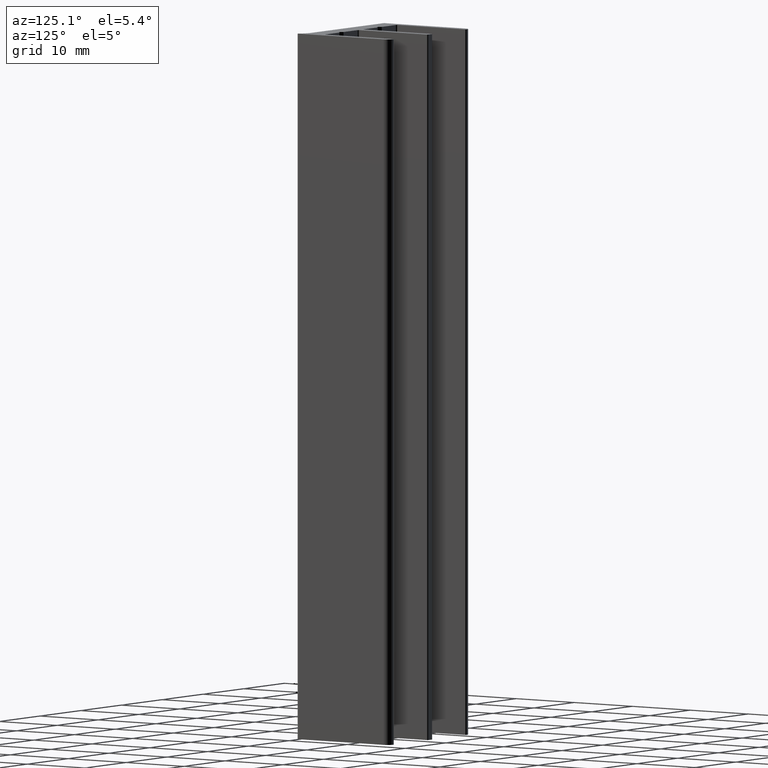
[diagram: clean part render]
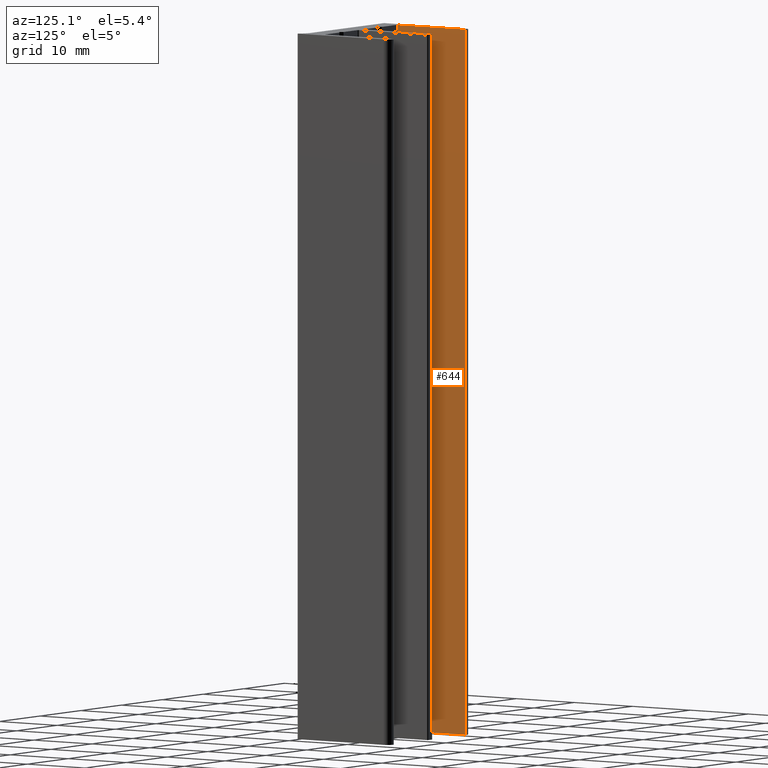
[diagram: same view with one face highlighted and labeled with its STEP entity id]
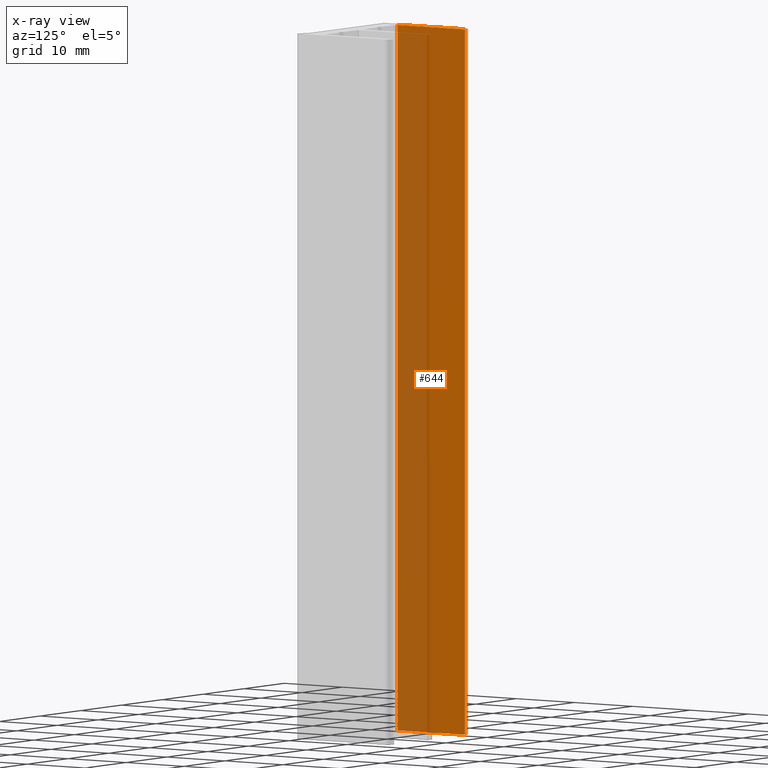
[diagram: x-ray of the same camera — body ghosted, the highlighted face saturated]
A machine part, auxiliary view. The second image highlights one B-rep face of the part: STEP entity #644.
The next image is the same camera in x-ray: the body ghosted, the highlighted face saturated — about 48% of this face is hidden behind the body in this view.
In plain terms, the highlighted planar face has unit normal (1, 0, 0).
Its self-contained STEP definition (entity closure, byte-faithful):
#586=CARTESIAN_POINT('',(-7.900000000000091,3.200000000000159,-100.0));
#587=VERTEX_POINT('',#586);
#595=CARTESIAN_POINT('',(-7.900000000000091,3.200000000000159,0.0));
#596=VERTEX_POINT('',#595);
#597=CARTESIAN_POINT('',(-7.900000000000091,3.200000000000159,-100.0));
#598=DIRECTION('',(0.0,0.0,1.0));
#599=VECTOR('',#598,100.0);
#600=LINE('',#597,#599);
#601=EDGE_CURVE('',#587,#596,#600,.T.);
#614=CARTESIAN_POINT('',(-7.900000000000091,3.200000000000159,-100.0));
#615=DIRECTION('',(1.0,0.0,0.0));
#616=DIRECTION('',(0.0,1.0,0.0));
#617=AXIS2_PLACEMENT_3D('',#614,#615,#616);
#618=PLANE('',#617);
#619=CARTESIAN_POINT('',(-7.900000000000091,14.800000000000068,-100.0));
#620=VERTEX_POINT('',#619);
#621=CARTESIAN_POINT('',(-7.900000000000091,3.200000000000159,-100.0));
#622=DIRECTION('',(0.0,1.0,0.0));
#623=VECTOR('',#622,11.599999999999909);
#624=LINE('',#621,#623);
#625=EDGE_CURVE('',#587,#620,#624,.T.);
#626=ORIENTED_EDGE('',*,*,#625,.T.);
#627=CARTESIAN_POINT('',(-7.900000000000091,14.800000000000068,0.0));
#628=VERTEX_POINT('',#627);
#629=CARTESIAN_POINT('',(-7.900000000000091,14.800000000000068,-100.0));
#630=DIRECTION('',(0.0,0.0,1.0));
#631=VECTOR('',#630,100.0);
#632=LINE('',#629,#631);
#633=EDGE_CURVE('',#620,#628,#632,.T.);
#634=ORIENTED_EDGE('',*,*,#633,.T.);
#635=CARTESIAN_POINT('',(-7.900000000000091,3.200000000000159,0.0));
#636=DIRECTION('',(0.0,1.0,0.0));
#637=VECTOR('',#636,11.599999999999909);
#638=LINE('',#635,#637);
#639=EDGE_CURVE('',#596,#628,#638,.T.);
#640=ORIENTED_EDGE('',*,*,#639,.F.);
#641=ORIENTED_EDGE('',*,*,#601,.F.);
#642=EDGE_LOOP('',(#626,#634,#640,#641));
#643=FACE_OUTER_BOUND('',#642,.T.);
#644=ADVANCED_FACE('',(#643),#618,.T.);